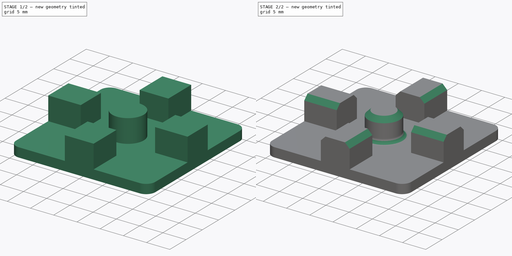
[diagram: build sequence overview — one tinted view per stage of 2, left to right]
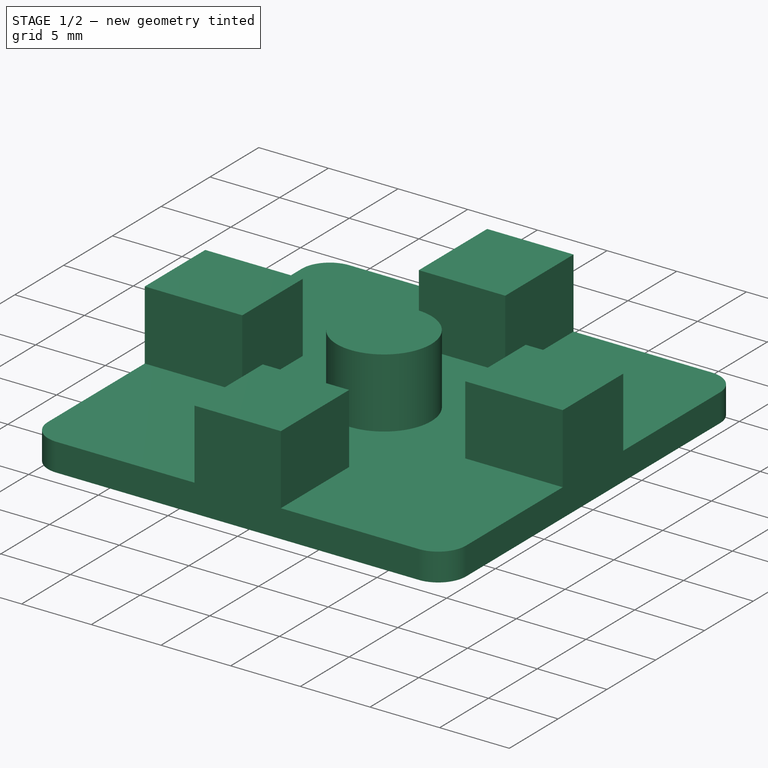
[diagram: stage 1 of 2 — iso view after this stage's code; geometry added in this stage tinted green]
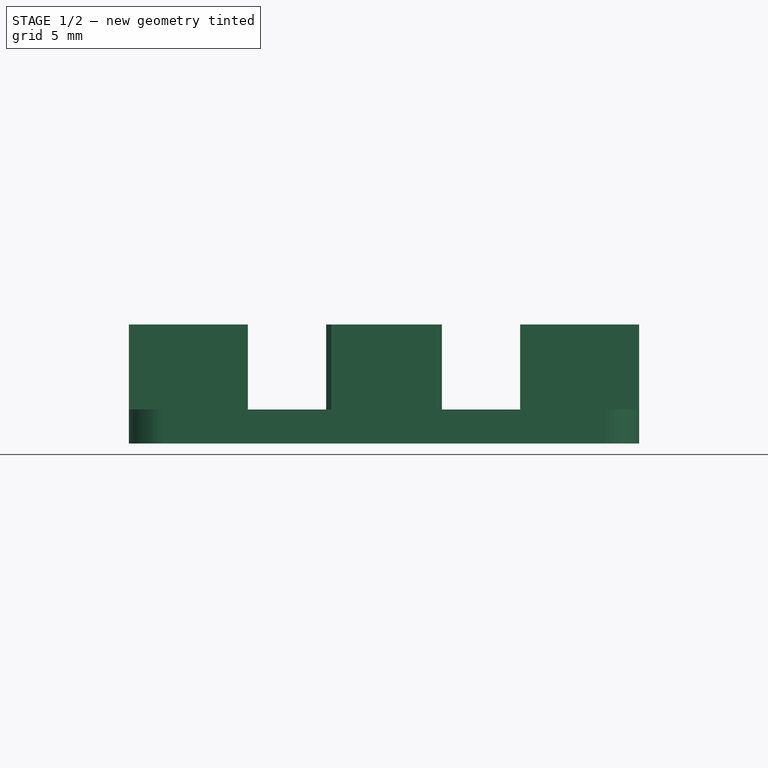
[diagram: stage 1 of 2 — front view after this stage's code; geometry added in this stage tinted green]
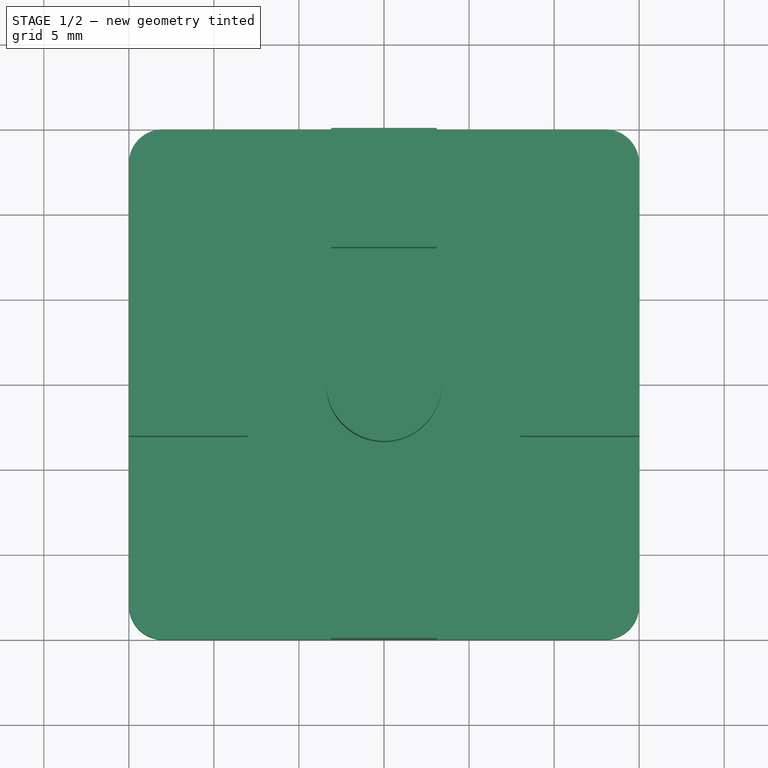
[diagram: stage 1 of 2 — top view after this stage's code; geometry added in this stage tinted green]
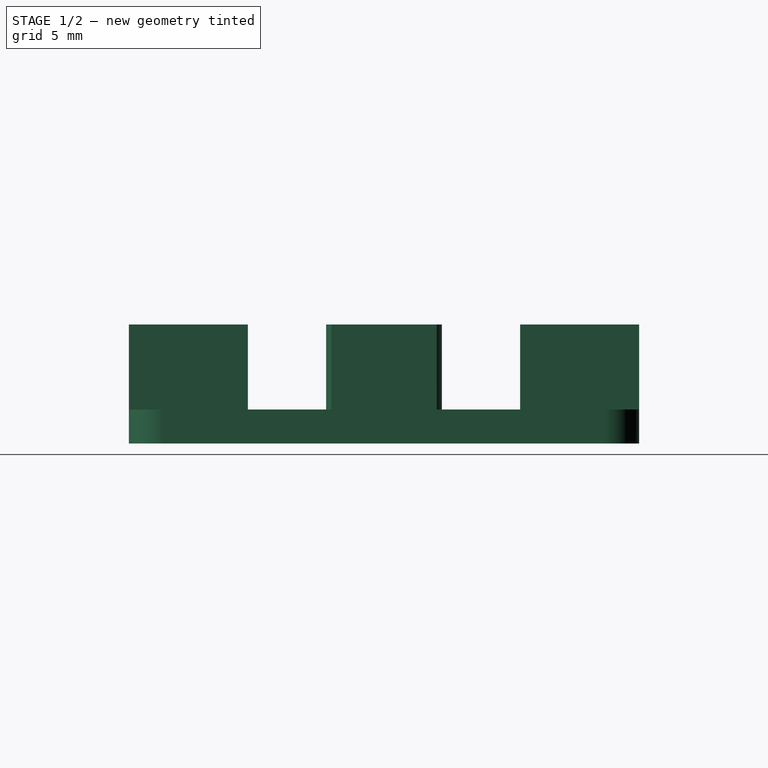
[diagram: stage 1 of 2 — right view after this stage's code; geometry added in this stage tinted green]
FCSTD DOCUMENT  (FreeCAD 0.19R20209 (Git))
Label: Sokel_001
License: Creative Commons Attribution
LicenseURL: http://creativecommons.org/licenses/by/4.0/
objects: Sketcher::SketchObject×2, PartDesign::Pad×2, PartDesign::Chamfer×1, PartDesign::Fillet×1, PartDesign::Body×1
note: 11 computed .brp shape members not serialized (recipe doc carries the construction recipe); baked Part::Feature solids carry a one-line shape summary decoded from their .brp

FEATURE [Sketcher::SketchObject] Sketch
  MapMode = 5
  Support = -> [XY_Plane]
  sketch-geometry (8):
    g0: LineSegment StartX=-13 StartY=15 StartZ=0 EndX=13 EndY=15 EndZ=0
    g1: LineSegment StartX=15 StartY=13 StartZ=0 EndX=15 EndY=-13 EndZ=0
    g2: LineSegment StartX=13 StartY=-15 StartZ=0 EndX=-13 EndY=-15 EndZ=0
    g3: LineSegment StartX=-15 StartY=-13 StartZ=0 EndX=-15 EndY=13 EndZ=0
    g4: ArcOfCircle CenterX=-13 CenterY=13 CenterZ=0 NormalX=0 NormalY=0 NormalZ=1 AngleXU=0 Radius=2 StartAngle=1.5708 EndAngle=3.14159
    g5: ArcOfCircle CenterX=13 CenterY=13 CenterZ=0 NormalX=0 NormalY=0 NormalZ=1 AngleXU=0 Radius=2 StartAngle=0 EndAngle=1.5708
    g6: ArcOfCircle CenterX=13 CenterY=-13 CenterZ=0 NormalX=0 NormalY=0 NormalZ=1 AngleXU=0 Radius=2 StartAngle=4.71239 EndAngle=6.28319
    g7: ArcOfCircle CenterX=-13 CenterY=-13 CenterZ=0 NormalX=0 NormalY=0 NormalZ=1 AngleXU=0 Radius=2 StartAngle=3.14159 EndAngle=4.71239
  constraints (19):
    c: Horizontal(g0)
    c: Horizontal(g2)
    c: Vertical(g1)
    c: Vertical(g3)
    c: Equal(g0,g1)
    c: Tangent(g0,g4) = 1.5708
    c: Tangent(g3,g4) = 1.5708
    c: Tangent(g0,g5) = 1.5708
    c: Tangent(g1,g5) = 1.5708
    c: Tangent(g1,g6) = 1.5708
    c: Tangent(g2,g6) = 1.5708
    c: Tangent(g2,g7) = 1.5708
    c: Tangent(g3,g7) = 1.5708
    c: Symmetric(g7,g5,g-1)
    c: Radius(g4) = 2
    c: Equal(g4,g5)
    c: Equal(g5,g6)
    c: Equal(g6,g7)
    c: DistanceX(g3,g1) = 30
FEATURE [PartDesign::Pad] Pad
  Length = 2
  Length2 = 100
  Profile = -> Sketch
  Refine = true
  Type = 0
FEATURE [Sketcher::SketchObject] Sketch001
  MapMode = 5
  Support = -> [XY_Plane]
  sketch-geometry (17):
    g0: LineSegment StartX=-15 StartY=3.1 StartZ=0 EndX=-8 EndY=3.1 EndZ=0
    g1: LineSegment StartX=-8 StartY=3.1 StartZ=0 EndX=-8 EndY=-3.1 EndZ=0
    g2: LineSegment StartX=-8 StartY=-3.1 StartZ=0 EndX=-15 EndY=-3.1 EndZ=0
    g3: LineSegment StartX=-15 StartY=-3.1 StartZ=0 EndX=-15 EndY=3.1 EndZ=0
    g4: LineSegment StartX=-3.1 StartY=-8 StartZ=0 EndX=3.1 EndY=-8 EndZ=0
    g5: LineSegment StartX=3.1 StartY=-8 StartZ=0 EndX=3.1 EndY=-15 EndZ=0
    g6: LineSegment StartX=3.1 StartY=-15 StartZ=0 EndX=-3.1 EndY=-15 EndZ=0
    g7: LineSegment StartX=-3.1 StartY=-15 StartZ=0 EndX=-3.1 EndY=-8 EndZ=0
    g8: LineSegment StartX=8 StartY=3.1 StartZ=0 EndX=15 EndY=3.1 EndZ=0
    g9: LineSegment StartX=15 StartY=3.1 StartZ=0 EndX=15 EndY=-3.1 EndZ=0
    g10: LineSegment StartX=15 StartY=-3.1 StartZ=0 EndX=8 EndY=-3.1 EndZ=0
    g11: LineSegment StartX=8 StartY=-3.1 StartZ=0 EndX=8 EndY=3.1 EndZ=0
    g12: LineSegment StartX=-3.1 StartY=15 StartZ=0 EndX=3.1 EndY=15 EndZ=0
    g13: LineSegment StartX=3.1 StartY=15 StartZ=0 EndX=3.1 EndY=8 EndZ=0
    g14: LineSegment StartX=3.1 StartY=8 StartZ=0 EndX=-3.1 EndY=8 EndZ=0
    g15: LineSegment StartX=-3.1 StartY=8 StartZ=0 EndX=-3.1 EndY=15 EndZ=0
    g16: Circle CenterX=0 CenterY=0 CenterZ=0 NormalX=0 NormalY=0 NormalZ=1 AngleXU=0 Radius=3.4
  constraints (48):
    c: Coincident(g0,g1)
    c: Coincident(g1,g2)
    c: Coincident(g2,g3)
    c: Coincident(g3,g0)
    c: Horizontal(g0)
    c: Horizontal(g2)
    c: Vertical(g1)
    c: Vertical(g3)
    c: Coincident(g4,g5)
    c: Coincident(g5,g6)
    c: Coincident(g6,g7)
    c: Coincident(g7,g4)
    c: Horizontal(g4)
    c: Horizontal(g6)
    c: Vertical(g5)
    c: Vertical(g7)
    c: Coincident(g8,g9)
    c: Coincident(g9,g10)
    c: Coincident(g10,g11)
    c: Coincident(g11,g8)
    c: Horizontal(g8)
    c: Horizontal(g10)
    c: Vertical(g9)
    c: Vertical(g11)
    c: Coincident(g12,g13)
    c: Coincident(g13,g14)
    c: Coincident(g14,g15)
    c: Coincident(g15,g12)
    c: Horizontal(g12)
    c: Horizontal(g14)
    c: Vertical(g13)
    c: Vertical(g15)
    c: Equal(g13,g2)
    c: Equal(g2,g5)
    c: Equal(g5,g8)
    c: Equal(g3,g12)
    c: Equal(g12,g9)
    c: Equal(g9,g6)
    c: DistanceY(g3,g3) = 6.2
    c: DistanceX(g0,g0) = 7
    c: Symmetric(g2,g8,g-1)
    c: Horizontal(g0,g8)
    c: Symmetric(g5,g12,g-1)
    c: Vertical(g14,g4)
    c: DistanceX(g0,g8) = 30
    c: DistanceY(g5,g12) = 30
    c: Diameter(g16) = 6.8
    c: Coincident(g16,g-1)
FEATURE [PartDesign::Pad] Pad001
  BaseFeature = -> Pad
  Length = 7
  Length2 = 100
  Profile = -> Sketch001
  Refine = true
  Type = 0
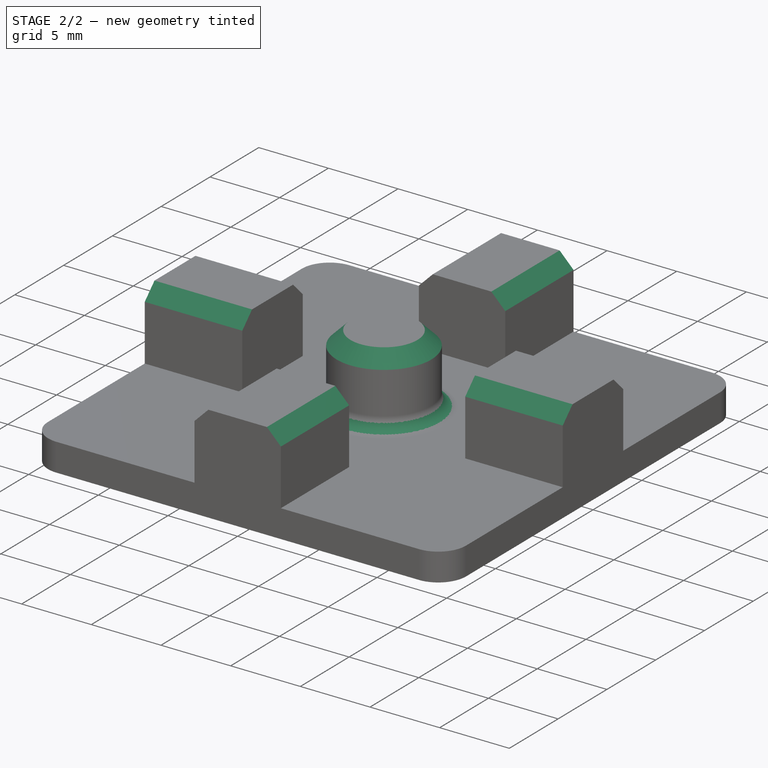
[diagram: stage 2 of 2 — iso view after this stage's code; geometry added in this stage tinted green]
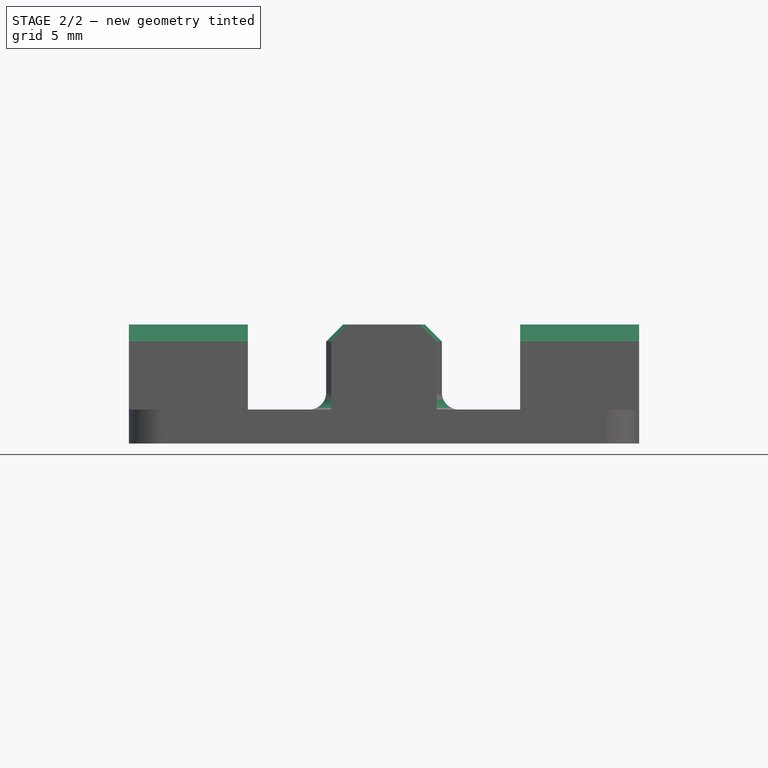
[diagram: stage 2 of 2 — front view after this stage's code; geometry added in this stage tinted green]
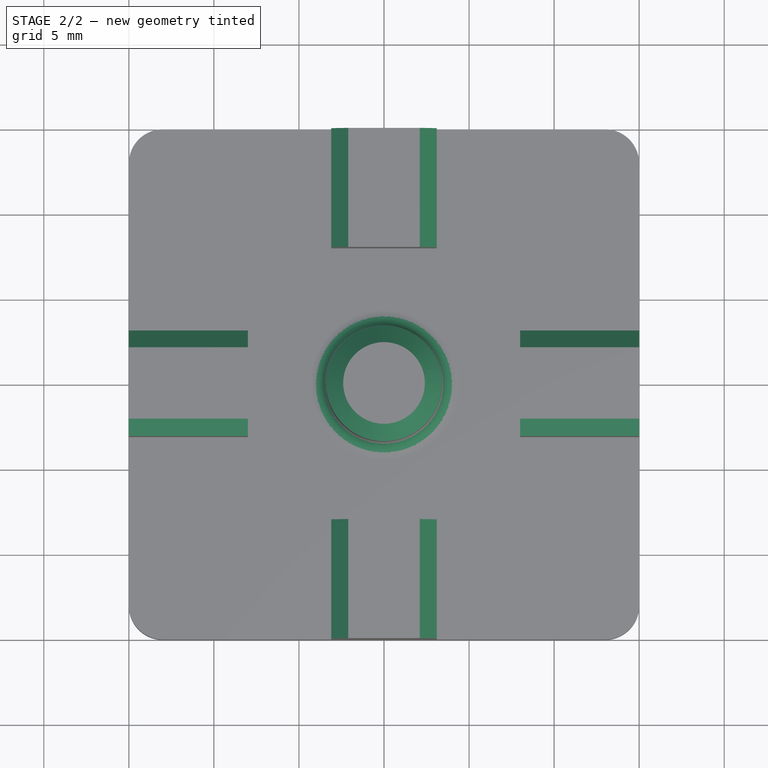
[diagram: stage 2 of 2 — top view after this stage's code; geometry added in this stage tinted green]
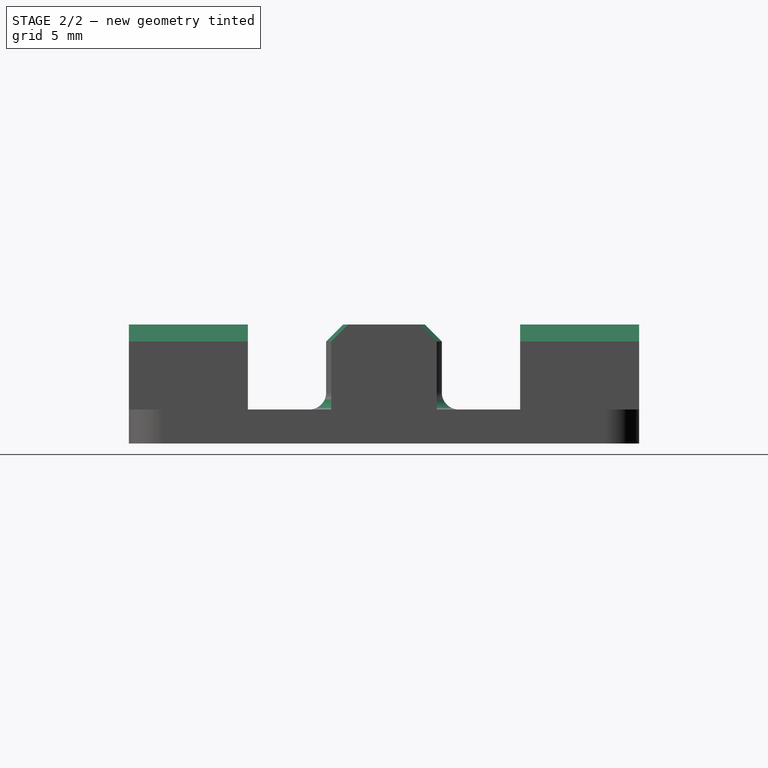
[diagram: stage 2 of 2 — right view after this stage's code; geometry added in this stage tinted green]
FEATURE [PartDesign::Chamfer] Chamfer
  Base = -> Pad001 [Edge67,Edge65,Edge60,Edge58,Edge53,Edge51,Edge46,Edge44,Edge39]
  BaseFeature = -> Pad001
  Refine = true
  Size = 1
  SupportTransform = true
FEATURE [PartDesign::Fillet] Fillet
  Base = -> Chamfer [Edge34]
  BaseFeature = -> Chamfer
  Radius = 1
  Refine = true
  SupportTransform = true
FEATURE [PartDesign::Body] Body
  Group = -> [Sketch,Pad,Sketch001,Pad001,Chamfer,Fillet]
  Origin = -> Origin
  Tip = -> Fillet
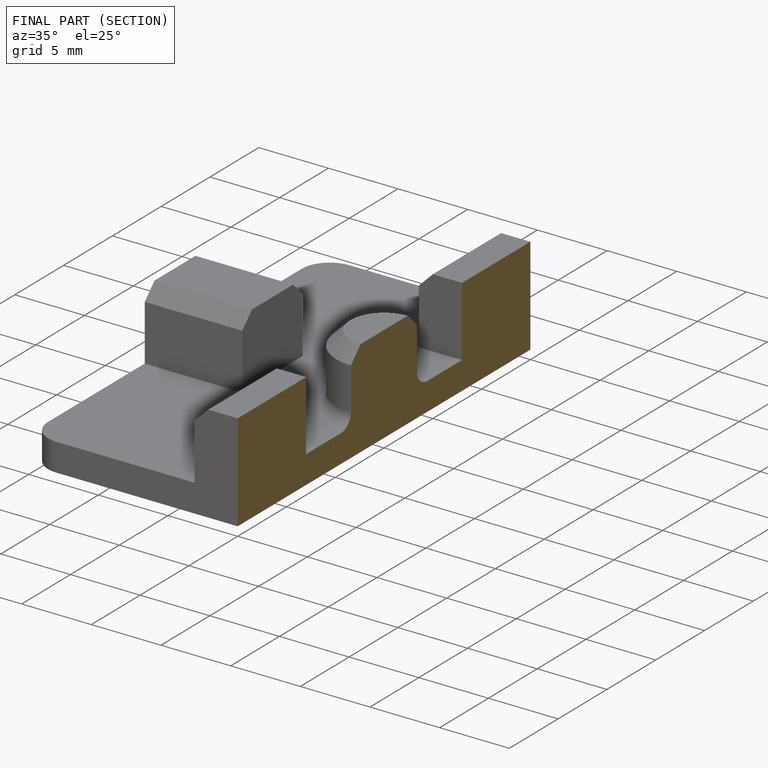
[diagram: finished part — half-section view (interior)]
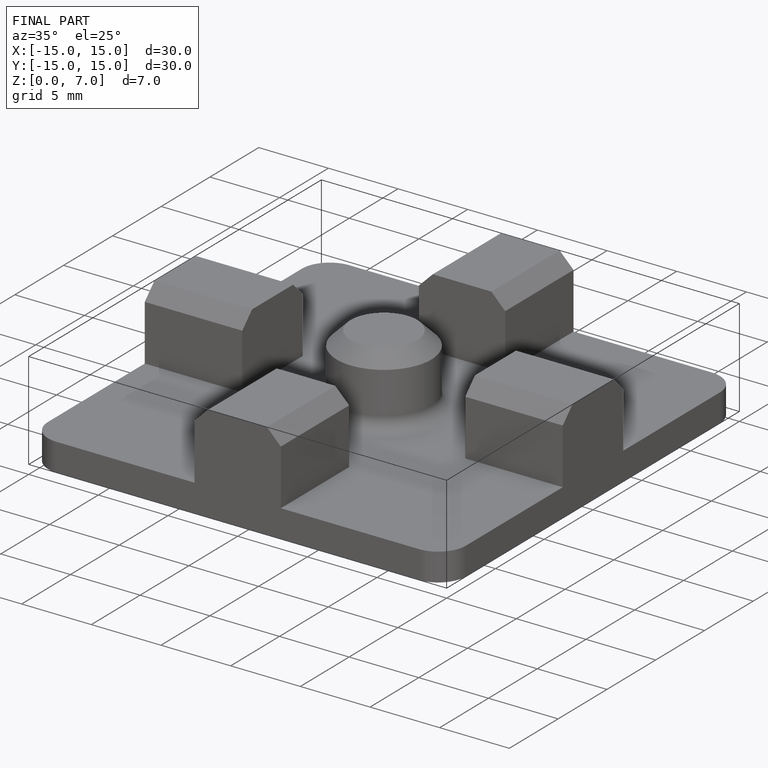
[diagram: finished part — iso view with bounding-box wireframe]
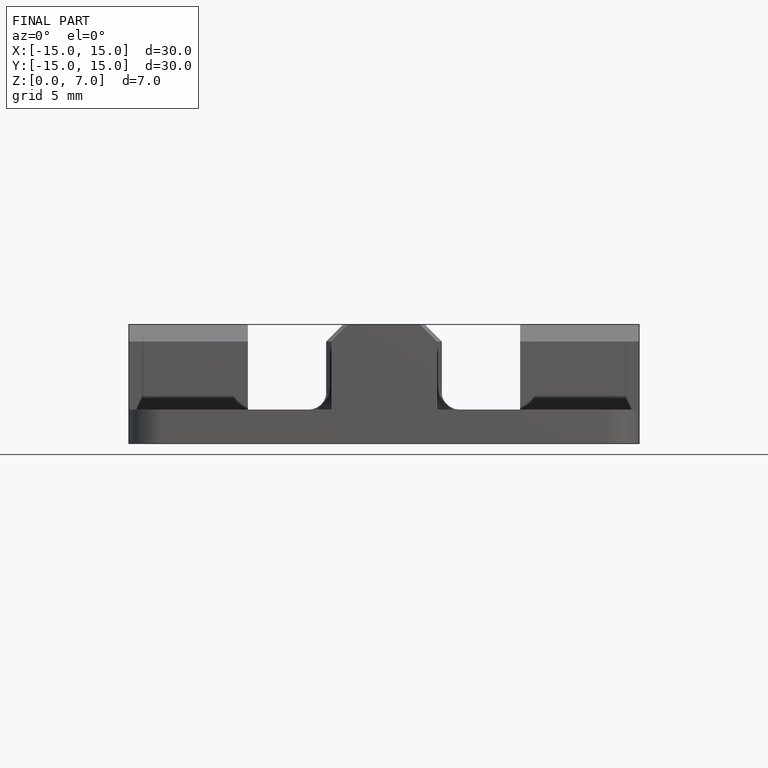
[diagram: finished part — front view with bounding-box wireframe]
